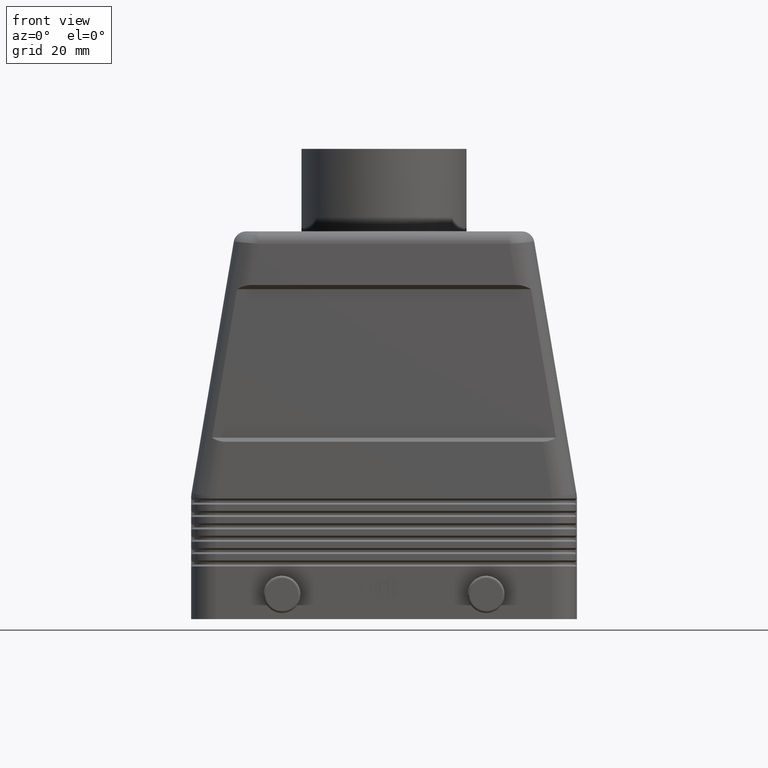
[diagram: clean part render]
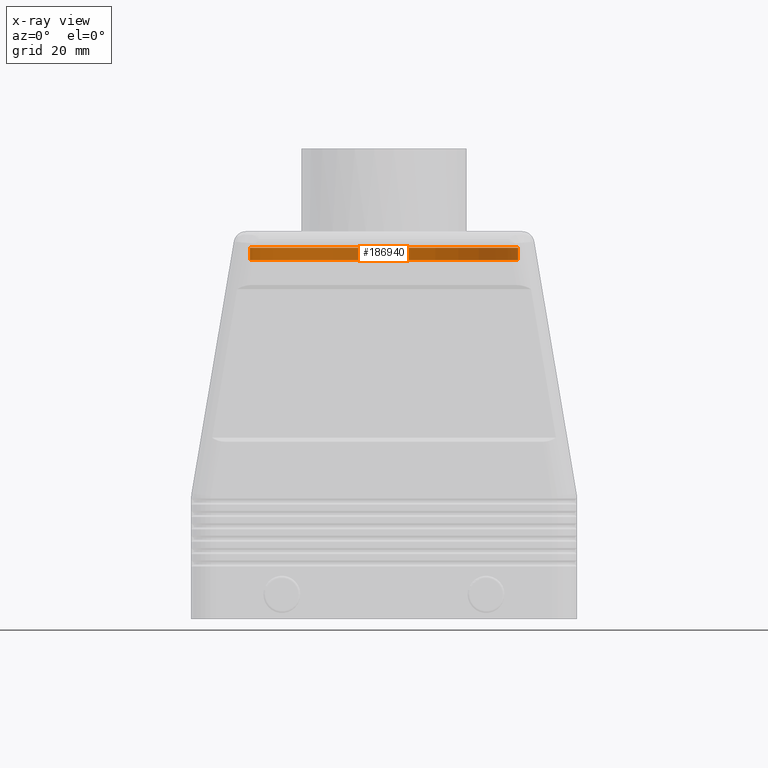
[diagram: x-ray — body ghosted, one internal face saturated and labeled with its STEP entity id]
A machine part, front view, then the same camera in x-ray: the body is ghosted and one INTERNAL B-rep face — a face not visible from any outside direction — is saturated and labeled: STEP entity #186940.
In plain terms, the highlighted cylindrical surface (partial cylindrical patch) has radius 32.5 mm, axis along (0, 0, 1).
Its self-contained STEP definition (entity closure, byte-faithful):
#57750=CARTESIAN_POINT('',(32.5,-3.10862446895044E-15,87.));
#57760=DIRECTION('',(0.,0.,1.));
#57770=VECTOR('',#57760,1.);
#57780=LINE('',#57750,#57770);
#57790=CARTESIAN_POINT('',(32.5,-3.10862446895044E-15,87.));
#57800=VERTEX_POINT('',#57790);
#57810=CARTESIAN_POINT('',(32.5,-3.10862446895044E-15,90.));
#57820=VERTEX_POINT('',#57810);
#57830=EDGE_CURVE('',#57800,#57820,#57780,.T.);
#57850=CARTESIAN_POINT('',(1.79191310683991E-16,-3.10862446895044E-15,
87.));
#57860=DIRECTION('',(0.,0.,1.));
#57870=DIRECTION('',(1.,0.,-0.));
#57880=AXIS2_PLACEMENT_3D('',#57850,#57860,#57870);
#57890=CIRCLE('',#57880,32.5);
#57900=CARTESIAN_POINT('',(-32.5,8.7147762827846E-16,87.));
#57910=VERTEX_POINT('',#57900);
#57940=CARTESIAN_POINT('',(-32.5,8.7147762827846E-16,87.));
#57950=DIRECTION('',(0.,0.,1.));
#57960=VECTOR('',#57950,1.);
#57970=LINE('',#57940,#57960);
#57980=CARTESIAN_POINT('',(-32.5,8.7147762827846E-16,90.));
#57990=VERTEX_POINT('',#57980);
#58000=EDGE_CURVE('',#57910,#57990,#57970,.T.);
#58020=CARTESIAN_POINT('',(1.79191310683991E-16,-3.10862446895044E-15,
90.));
#58030=DIRECTION('',(0.,0.,1.));
#58040=DIRECTION('',(1.,0.,-0.));
#58050=AXIS2_PLACEMENT_3D('',#58020,#58030,#58040);
#58060=CIRCLE('',#58050,32.5);
#58250=EDGE_CURVE('',#57800,#57910,#57890,.T.);
#58810=EDGE_CURVE('',#57820,#57990,#58060,.T.);
#186830=CARTESIAN_POINT('',(1.79191310683991E-16,-3.10862446895044E-15,
87.));
#186840=DIRECTION('',(0.,0.,1.));
#186850=DIRECTION('',(1.,0.,-0.));
#186860=AXIS2_PLACEMENT_3D('',#186830,#186840,#186850);
#186870=CYLINDRICAL_SURFACE('',#186860,32.5);
#186880=ORIENTED_EDGE('',*,*,#57830,.F.);
#186890=ORIENTED_EDGE('',*,*,#58810,.F.);
#186900=ORIENTED_EDGE('',*,*,#58000,.T.);
#186910=ORIENTED_EDGE('',*,*,#58250,.T.);
#186920=EDGE_LOOP('',(#186910,#186900,#186890,#186880));
#186930=FACE_OUTER_BOUND('',#186920,.T.);
#186940=ADVANCED_FACE('',(#186930),#186870,.T.);